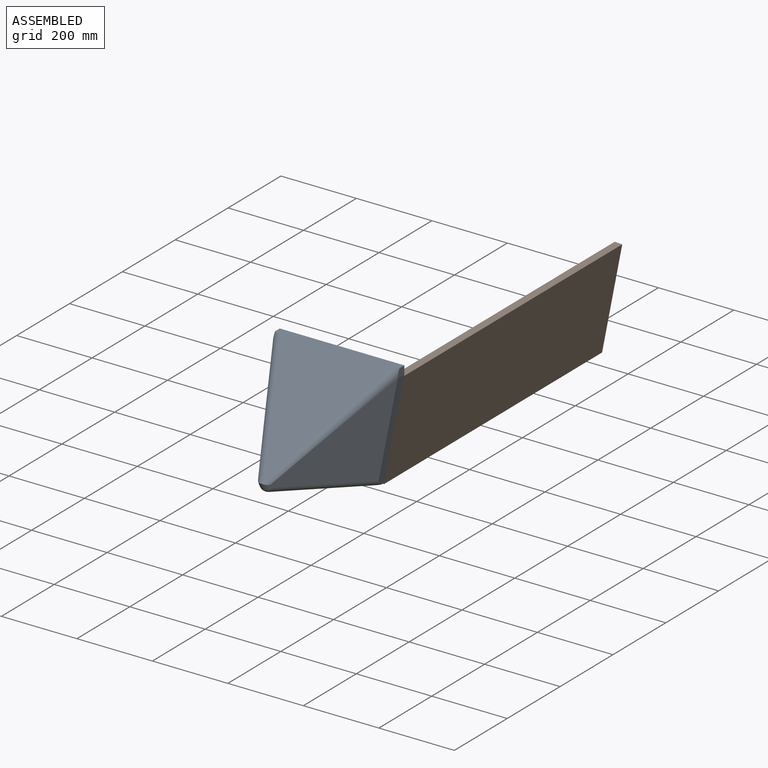
[diagram: assembled view]
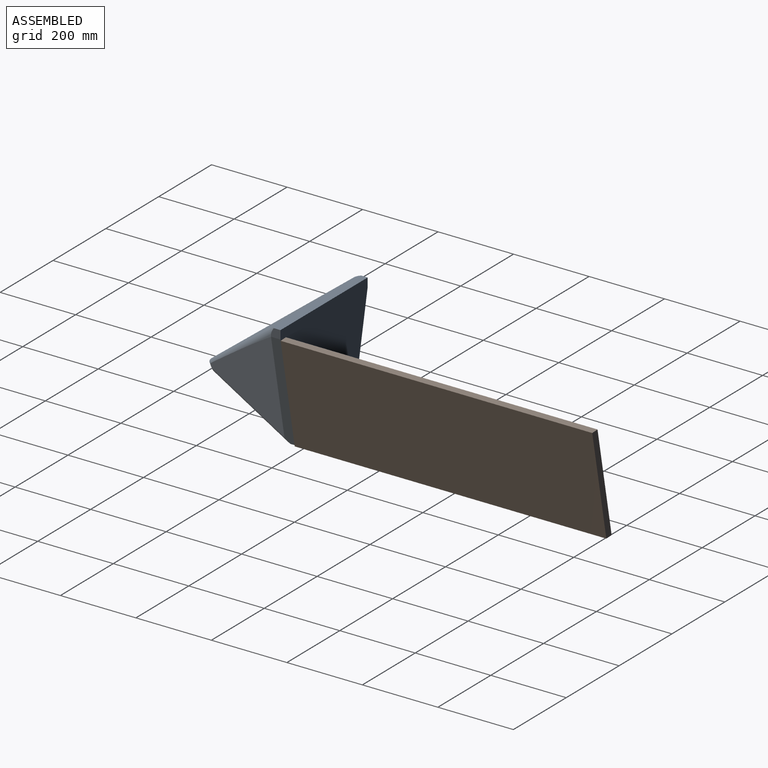
[diagram: assembled view, second angle]
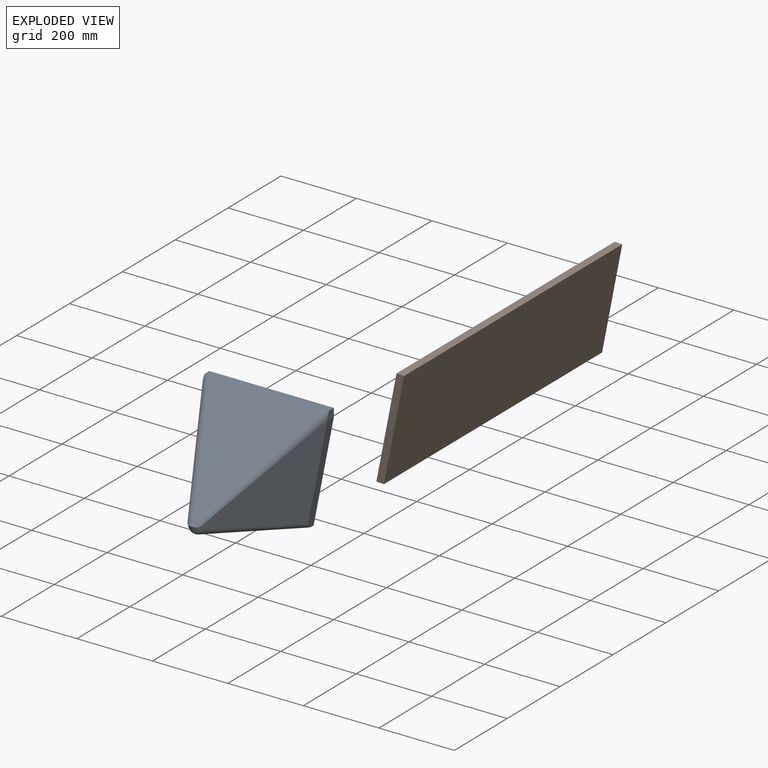
[diagram: exploded view]
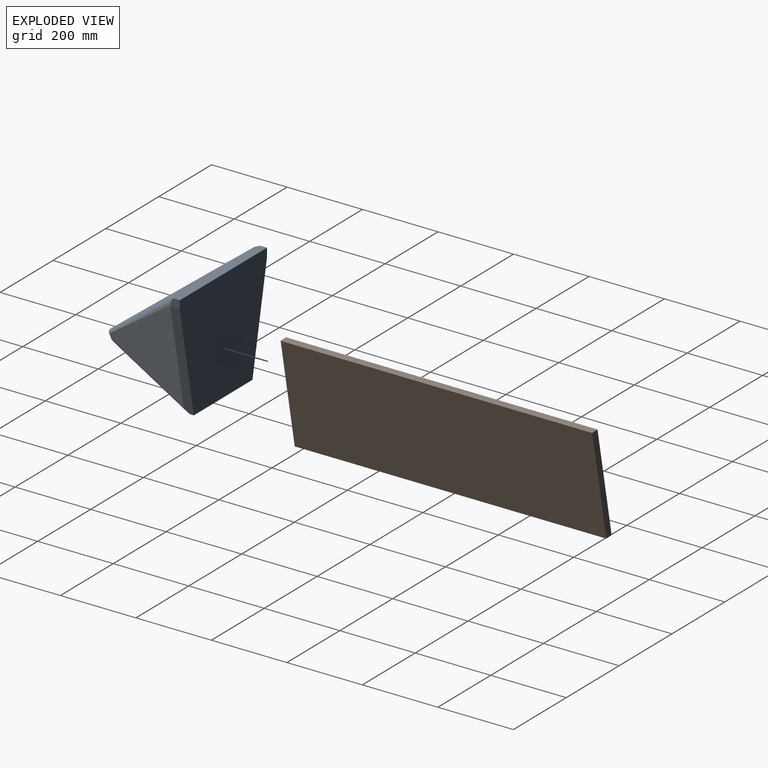
[diagram: exploded view, second angle]
ASSEMBLY  parts=2 mates=2
PART A: 20 faces, bbox 342.1x302.5x306 mm
  f0: plane 272.88x55.14mm, normal (-0.98,0,-0.2), area 6884.9mm2, adj f1,f5,f6,f8,f14,f15
  f1: plane 221.45x25mm, normal (0,0,-1), area 5359.2mm2, adj f0,f2,f6,f9,f15,f16
  f2: plane 273.23x53.4mm, normal (0.98,0,-0.19), area 6886.1mm2, adj f1,f3,f6,f10,f16
  f3: plane 25x22.47mm, normal (1,0,0), area 515.9mm2, adj f2,f4,f6,f11,f17
  f4: plane 330x25mm, normal (0,0,1), area 8169.9mm2, adj f3,f5,f6,f12,f13,f17
  f5: plane 25x22.47mm, normal (-1,0,0), area 514.2mm2, adj f0,f4,f6,f7,f13,f14
  f6: plane 330x295.7mm, normal (0,1,0), area 82703.8mm2, adj f0,f1,f2,f3,f4,f5
  f7: plane 27.02x20.75mm, normal (-0.88,-0.48,0), area 31.1mm2, adj f5,f13,f14
  f8: plane 263.95x255.07mm, normal (-0.91,-0.37,-0.18), area 38784.4mm2, adj f0,f13,f14,f15,f19
  f9: plane 255.4x188.74mm, normal (0,-0.21,-0.98), area 24667.3mm2, adj f1,f15,f16
  f10: plane 264.13x257.95mm, normal (0.91,-0.38,-0.18), area 39396.1mm2, adj f2,f11,f16,f17,f19
  f11: plane 63.19x48.54mm, normal (0.87,-0.49,0), area 171.5mm2, adj f3,f10,f17
  f12: plane 297.75x270.38mm, normal (0,-0.61,0.79), area 50760mm2, adj f4,f13,f17
  f13: cylinder r=20mm len=288.63mm, axis (-0.4,0.73,0.56), area 8361.6mm2, adj f4,f5,f7,f8,f12,f14,f17,f19
  f14: cylinder r=20mm len=167.98mm, axis (0.41,-0.75,-0.52), area 554.5mm2, adj f0,f5,f7,f8,f13
  f15: cylinder r=20mm len=276.12mm, axis (0.33,-0.92,0.2), area 7457.6mm2, adj f0,f1,f8,f9,f18
  f16: cylinder r=20mm len=276.37mm, axis (0.35,0.92,-0.2), area 7549.2mm2, adj f1,f2,f9,f10,f18
  f17: cylinder r=20mm len=288.44mm, axis (-0.4,-0.73,-0.56), area 8450mm2, adj f3,f4,f10,f11,f12,f13,f19
  f18: sphere r=20mm, area 485.3mm2, adj f15,f16,f19
  f19: cylinder r=20mm len=36.49mm, axis (-0.01,-0.43,0.9), area 664.9mm2, adj f8,f10,f13,f17,f18
PART B: 6 faces, bbox 60.7x825.5x275.4 mm
  f0: plane 825.5x20mm, normal (0,0,-1), area 16510mm2, adj f1,f3,f4,f5
  f1: plane 825.5x275.42mm, normal (-0.99,0,0.15), area 229819.2mm2, adj f0,f2,f4,f5
  f2: plane 825.5x20mm, normal (0,0,1), area 16510mm2, adj f1,f3,f4,f5
  f3: plane 825.5x275.42mm, normal (0.99,0,-0.15), area 229819.2mm2, adj f0,f2,f4,f5
  f4: plane 275.42x60.66mm, normal (0,-1,0), area 5508.3mm2, adj f0,f1,f2,f3
  f5: plane 275.42x60.66mm, normal (0,1,0), area 5508.3mm2, adj f0,f1,f2,f3
PLACE A at identity fixed
PLACE B rot(axis=(0,1,0),2.7deg) t=(270.25,825.5,-128.84)mm
MATE planar B.f4 <-> A.f6  axis (0,-1,0) through (129.92,0,-139.53)mm
MATE planar B.f3 <-> A.f2  axis (0.98,0,-0.19) through (139.91,412.75,-139.99)mm
